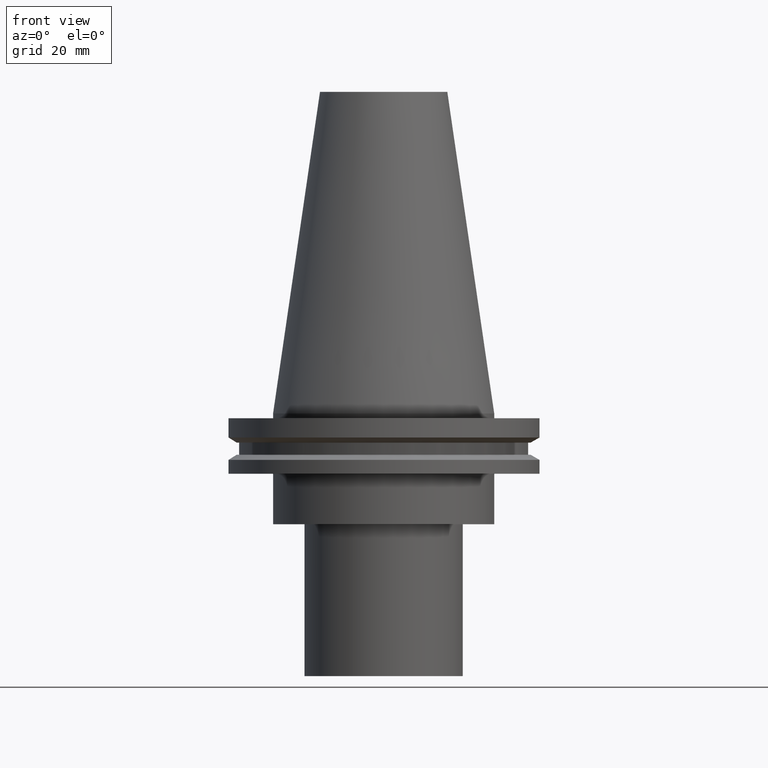
[diagram: clean part render]
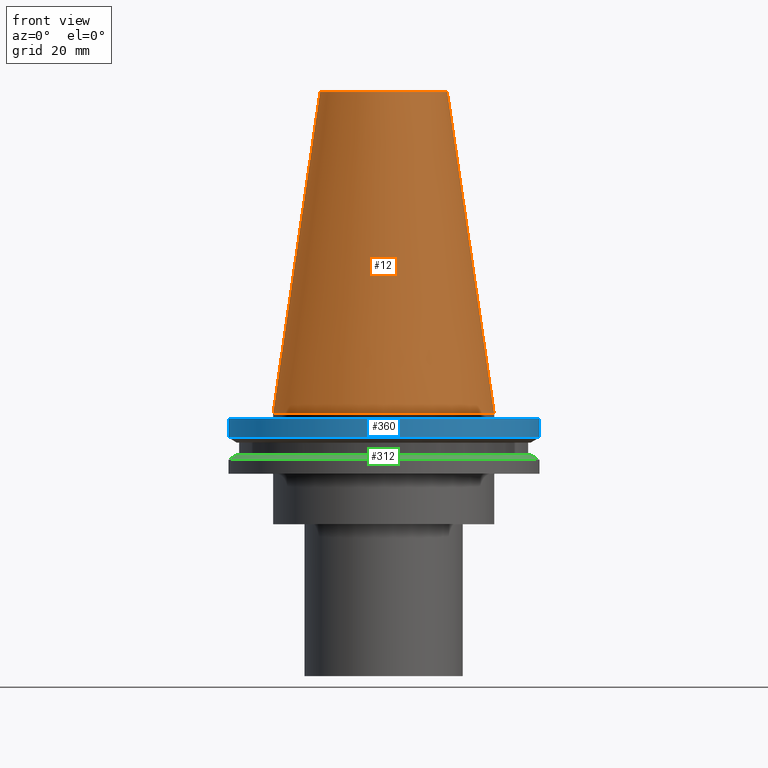
[diagram: same view with three faces highlighted in distinct colors, each labeled with its STEP entity id]
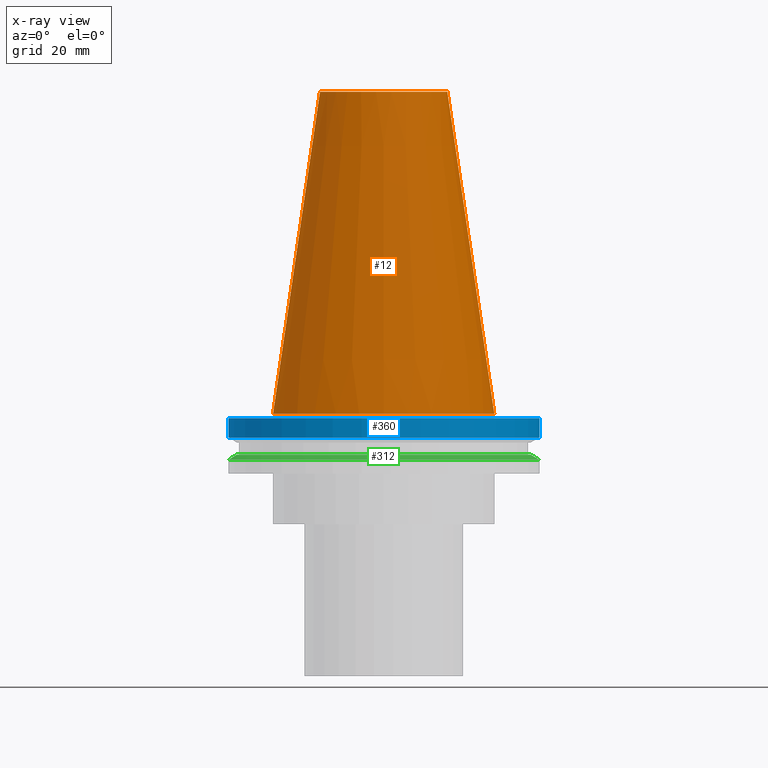
[diagram: x-ray of the same camera — body ghosted, the three highlighted faces saturated]
A machine part, front view with three faces highlighted in distinct colors.
The next image is the same camera in x-ray (body ghosted, the three faces saturated) — at least one of them is partly hidden behind the body in this view.
Their STEP definitions:

[orange] entity #12 — the highlighted conical surface has half-angle 8.297 deg.
#1 = FACE_BOUND ( 'NONE', #37, .T. ) ;
#9 = DIRECTION ( 'NONE',  ( 1.000000000000000000, 0.000000000000000000, 0.000000000000000000 ) ) ;
#12 = ADVANCED_FACE ( 'NONE', ( #1, #124 ), #239, .T. ) ;
#27 = ORIENTED_EDGE ( 'NONE', *, *, #155, .T. ) ;
#28 = VERTEX_POINT ( 'NONE', #149 ) ;
#37 = EDGE_LOOP ( 'NONE', ( #238 ) ) ;
#67 = CIRCLE ( 'NONE', #392, 20.10819343178871321 ) ;
#71 = DIRECTION ( 'NONE',  ( -0.000000000000000000, -0.000000000000000000, 1.000000000000000000 ) ) ;
#100 = CIRCLE ( 'NONE', #161, 34.92499999999999005 ) ;
#124 = FACE_OUTER_BOUND ( 'NONE', #266, .T. ) ;
#128 = CARTESIAN_POINT ( 'NONE',  ( 0.000000000000000000, 0.000000000000000000, 0.000000000000000000 ) ) ;
#149 = CARTESIAN_POINT ( 'NONE',  ( 34.92499999999999005, 0.000000000000000000, 0.000000000000000000 ) ) ;
#155 = EDGE_CURVE ( 'NONE', #28, #28, #100, .T. ) ;
#159 = EDGE_CURVE ( 'NONE', #270, #270, #67, .T. ) ;
#160 = DIRECTION ( 'NONE',  ( 0.000000000000000000, 0.000000000000000000, -1.000000000000000000 ) ) ;
#161 = AXIS2_PLACEMENT_3D ( 'NONE', #128, #251, #9 ) ;
#190 = CARTESIAN_POINT ( 'NONE',  ( 0.000000000000000000, 0.000000000000000000, 0.000000000000000000 ) ) ;
#194 = DIRECTION ( 'NONE',  ( 1.000000000000000000, 0.000000000000000000, 0.000000000000000000 ) ) ;
#212 = DIRECTION ( 'NONE',  ( -1.000000000000000000, 0.000000000000000000, 0.000000000000000000 ) ) ;
#238 = ORIENTED_EDGE ( 'NONE', *, *, #159, .F. ) ;
#239 = CONICAL_SURFACE ( 'NONE', #273, 34.92499999999999005, 0.1448138465474119452 ) ;
#251 = DIRECTION ( 'NONE',  ( -0.000000000000000000, -0.000000000000000000, 1.000000000000000000 ) ) ;
#266 = EDGE_LOOP ( 'NONE', ( #27 ) ) ;
#270 = VERTEX_POINT ( 'NONE', #387 ) ;
#273 = AXIS2_PLACEMENT_3D ( 'NONE', #190, #160, #212 ) ;
#341 = CARTESIAN_POINT ( 'NONE',  ( 0.000000000000000000, 0.000000000000000000, 101.5999999999999801 ) ) ;
#387 = CARTESIAN_POINT ( 'NONE',  ( 20.10819343178871321, 0.000000000000000000, 101.5999999999999801 ) ) ;
#392 = AXIS2_PLACEMENT_3D ( 'NONE', #341, #71, #194 ) ;

[blue] entity #360 — the highlighted cylindrical surface (bore or boss wall) has radius 49.215 mm, axis along (-0, -0, 1).
#3 = CARTESIAN_POINT ( 'NONE',  ( 49.21499999999999631, 0.000000000000000000, -1.499999999999987566 ) ) ;
#5 = EDGE_CURVE ( 'NONE', #139, #139, #308, .T. ) ;
#51 = CARTESIAN_POINT ( 'NONE',  ( 0.000000000000000000, 0.000000000000000000, 101.5999999999999943 ) ) ;
#62 = DIRECTION ( 'NONE',  ( 1.000000000000000000, 0.000000000000000000, 0.000000000000000000 ) ) ;
#81 = CARTESIAN_POINT ( 'NONE',  ( 49.21500000000000341, 0.000000000000000000, -7.602389855251287187 ) ) ;
#107 = CARTESIAN_POINT ( 'NONE',  ( 0.000000000000000000, 0.000000000000000000, -1.499999999999987566 ) ) ;
#112 = DIRECTION ( 'NONE',  ( 1.000000000000000000, 0.000000000000000000, 0.000000000000000000 ) ) ;
#137 = DIRECTION ( 'NONE',  ( -0.000000000000000000, -0.000000000000000000, 1.000000000000000000 ) ) ;
#139 = VERTEX_POINT ( 'NONE', #81 ) ;
#154 = AXIS2_PLACEMENT_3D ( 'NONE', #391, #365, #62 ) ;
#187 = AXIS2_PLACEMENT_3D ( 'NONE', #51, #263, #112 ) ;
#242 = ORIENTED_EDGE ( 'NONE', *, *, #345, .F. ) ;
#263 = DIRECTION ( 'NONE',  ( -0.000000000000000000, -0.000000000000000000, 1.000000000000000000 ) ) ;
#278 = EDGE_LOOP ( 'NONE', ( #299 ) ) ;
#281 = VERTEX_POINT ( 'NONE', #3 ) ;
#294 = FACE_OUTER_BOUND ( 'NONE', #395, .T. ) ;
#299 = ORIENTED_EDGE ( 'NONE', *, *, #5, .T. ) ;
#305 = CIRCLE ( 'NONE', #315, 49.21499999999999631 ) ;
#308 = CIRCLE ( 'NONE', #154, 49.21500000000000341 ) ;
#315 = AXIS2_PLACEMENT_3D ( 'NONE', #107, #137, #323 ) ;
#321 = CYLINDRICAL_SURFACE ( 'NONE', #187, 49.21499999999999631 ) ;
#323 = DIRECTION ( 'NONE',  ( 1.000000000000000000, 0.000000000000000000, 0.000000000000000000 ) ) ;
#345 = EDGE_CURVE ( 'NONE', #281, #281, #305, .T. ) ;
#360 = ADVANCED_FACE ( 'NONE', ( #294, #382 ), #321, .T. ) ;
#365 = DIRECTION ( 'NONE',  ( -0.000000000000000000, -0.000000000000000000, 1.000000000000000000 ) ) ;
#382 = FACE_OUTER_BOUND ( 'NONE', #278, .T. ) ;
#391 = CARTESIAN_POINT ( 'NONE',  ( 0.000000000000000000, 0.000000000000000000, -7.602389855251287187 ) ) ;
#395 = EDGE_LOOP ( 'NONE', ( #242 ) ) ;

[green] entity #312 — the highlighted conical surface has half-angle 60 deg.
#10 = CARTESIAN_POINT ( 'NONE',  ( 49.21499999999998920, 0.000000000000000000, -14.65761014474876944 ) ) ;
#11 = AXIS2_PLACEMENT_3D ( 'NONE', #267, #376, #383 ) ;
#19 = DIRECTION ( 'NONE',  ( 1.000000000000000000, 0.000000000000000000, 0.000000000000000000 ) ) ;
#46 = CARTESIAN_POINT ( 'NONE',  ( 46.43919780457007818, 0.000000000000000000, -13.05499999999999794 ) ) ;
#80 = EDGE_LOOP ( 'NONE', ( #359 ) ) ;
#89 = AXIS2_PLACEMENT_3D ( 'NONE', #291, #353, #19 ) ;
#109 = FACE_BOUND ( 'NONE', #385, .T. ) ;
#118 = CONICAL_SURFACE ( 'NONE', #232, 49.21499999999998920, 1.047197551196554333 ) ;
#199 = DIRECTION ( 'NONE',  ( 0.000000000000000000, 0.000000000000000000, -1.000000000000000000 ) ) ;
#225 = VERTEX_POINT ( 'NONE', #46 ) ;
#232 = AXIS2_PLACEMENT_3D ( 'NONE', #355, #199, #384 ) ;
#235 = FACE_OUTER_BOUND ( 'NONE', #80, .T. ) ;
#260 = CIRCLE ( 'NONE', #11, 49.21499999999998920 ) ;
#267 = CARTESIAN_POINT ( 'NONE',  ( 0.000000000000000000, 0.000000000000000000, -14.65761014474876944 ) ) ;
#285 = VERTEX_POINT ( 'NONE', #10 ) ;
#291 = CARTESIAN_POINT ( 'NONE',  ( 0.000000000000000000, 0.000000000000000000, -13.05499999999999794 ) ) ;
#310 = EDGE_CURVE ( 'NONE', #285, #285, #260, .T. ) ;
#312 = ADVANCED_FACE ( 'NONE', ( #109, #235 ), #118, .T. ) ;
#330 = ORIENTED_EDGE ( 'NONE', *, *, #393, .F. ) ;
#353 = DIRECTION ( 'NONE',  ( -0.000000000000000000, -0.000000000000000000, 1.000000000000000000 ) ) ;
#355 = CARTESIAN_POINT ( 'NONE',  ( 0.000000000000000000, 0.000000000000000000, -14.65761014474876944 ) ) ;
#359 = ORIENTED_EDGE ( 'NONE', *, *, #310, .T. ) ;
#367 = CIRCLE ( 'NONE', #89, 46.43919780457007818 ) ;
#376 = DIRECTION ( 'NONE',  ( -0.000000000000000000, -0.000000000000000000, 1.000000000000000000 ) ) ;
#383 = DIRECTION ( 'NONE',  ( 1.000000000000000000, 0.000000000000000000, 0.000000000000000000 ) ) ;
#384 = DIRECTION ( 'NONE',  ( -1.000000000000000000, 0.000000000000000000, 0.000000000000000000 ) ) ;
#385 = EDGE_LOOP ( 'NONE', ( #330 ) ) ;
#393 = EDGE_CURVE ( 'NONE', #225, #225, #367, .T. ) ;